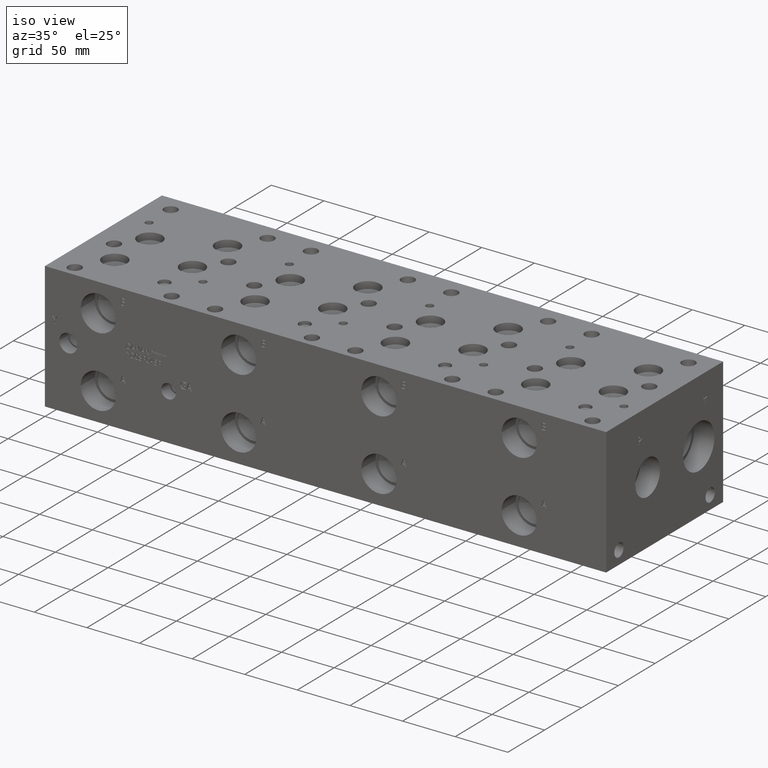
[diagram: clean part render]
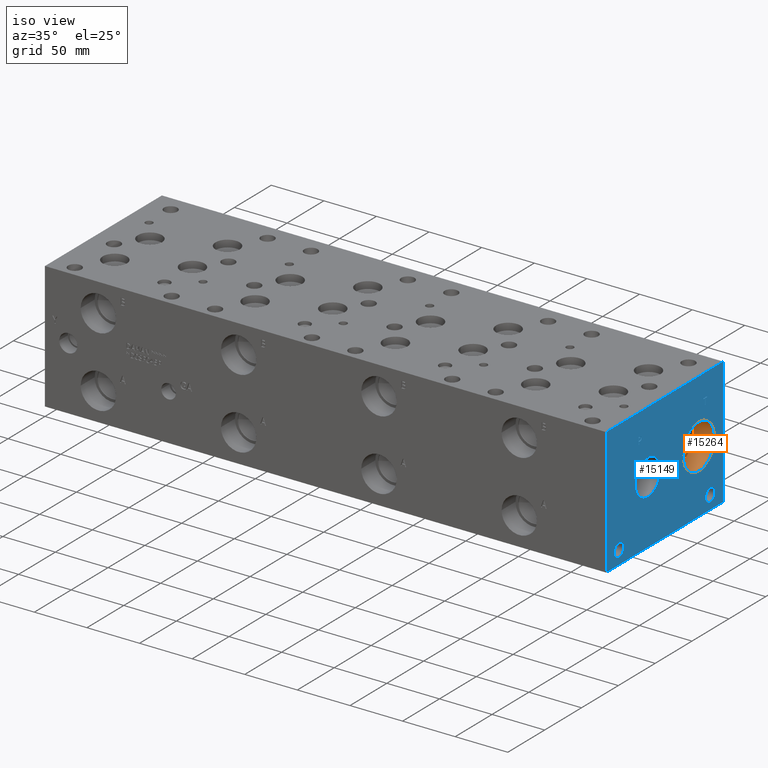
[diagram: same view with the hole feature highlighted: cylindrical wall and planar end face, labeled with their STEP entity ids]
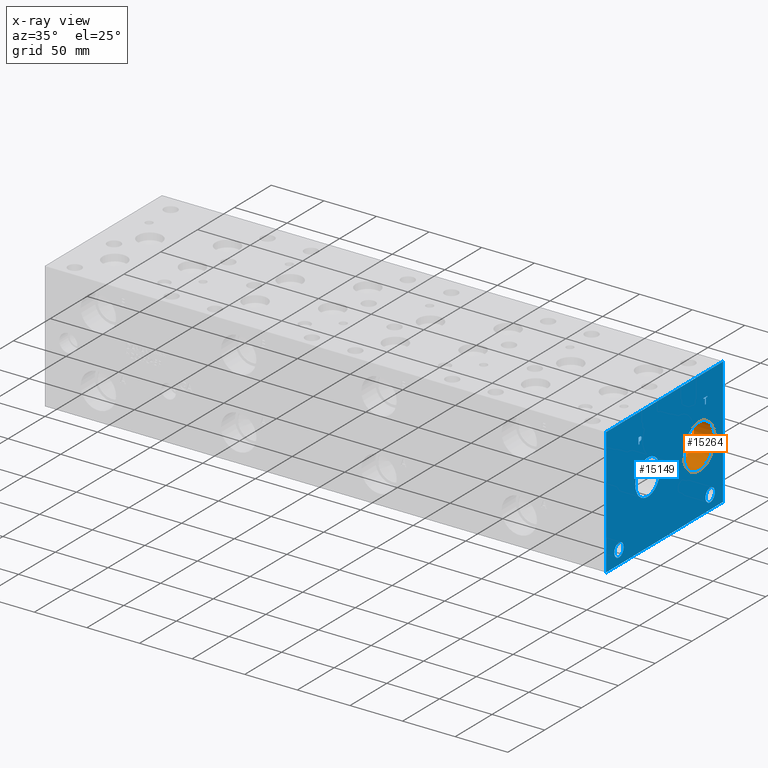
[diagram: x-ray of the same camera — body ghosted, the hole faces saturated]
A machine part, iso view. The highlighted faces form one hole feature of diameter 42.4688 mm: the cylindrical wall (entity #15264, orange) and its adjacent planar end face (entity #15149, blue) — they share a circular edge in the B-rep.
The next image is the same camera in x-ray (body ghosted, the hole faces saturated) — the bore reads through the body.
Wall:
#27=CYLINDRICAL_SURFACE('',#15983,21.2344);
#398=CIRCLE('',#15832,21.2344);
#399=CIRCLE('',#15833,21.2344);
#454=CIRCLE('',#15980,21.2344);
#455=CIRCLE('',#15981,21.2344);
#1905=FACE_OUTER_BOUND('',#2787,.T.);
#2787=EDGE_LOOP('',(#12617,#12618,#12619,#12620,#12621,#12622));
#4280=LINE('',#25561,#5643);
#5643=VECTOR('',#18720,21.2344);
#6719=VERTEX_POINT('',#24698);
#6720=VERTEX_POINT('',#24699);
#6910=VERTEX_POINT('',#25554);
#6911=VERTEX_POINT('',#25555);
#8649=EDGE_CURVE('',#6719,#6720,#398,.T.);
#8650=EDGE_CURVE('',#6720,#6719,#399,.T.);
#8932=EDGE_CURVE('',#6910,#6911,#454,.T.);
#8933=EDGE_CURVE('',#6911,#6910,#455,.T.);
#8935=EDGE_CURVE('',#6720,#6911,#4280,.T.);
#12617=ORIENTED_EDGE('',*,*,#8649,.F.);
#12618=ORIENTED_EDGE('',*,*,#8650,.F.);
#12619=ORIENTED_EDGE('',*,*,#8935,.T.);
#12620=ORIENTED_EDGE('',*,*,#8932,.F.);
#12621=ORIENTED_EDGE('',*,*,#8933,.F.);
#12622=ORIENTED_EDGE('',*,*,#8935,.F.);
#15264=ADVANCED_FACE('',(#1905),#27,.F.);
#15832=AXIS2_PLACEMENT_3D('',#24700,#18227,#18228);
#15833=AXIS2_PLACEMENT_3D('',#24701,#18229,#18230);
#15980=AXIS2_PLACEMENT_3D('',#25556,#18712,#18713);
#15981=AXIS2_PLACEMENT_3D('',#25557,#18714,#18715);
#15983=AXIS2_PLACEMENT_3D('',#25560,#18718,#18719);
#18227=DIRECTION('center_axis',(-1.,0.,0.));
#18228=DIRECTION('ref_axis',(0.,1.,0.));
#18229=DIRECTION('center_axis',(-1.,0.,0.));
#18230=DIRECTION('ref_axis',(0.,1.,0.));
#18712=DIRECTION('center_axis',(1.,0.,0.));
#18713=DIRECTION('ref_axis',(0.,1.,0.));
#18714=DIRECTION('center_axis',(1.,0.,0.));
#18715=DIRECTION('ref_axis',(0.,1.,0.));
#18718=DIRECTION('center_axis',(1.,0.,0.));
#18719=DIRECTION('ref_axis',(0.,1.,0.));
#18720=DIRECTION('',(-1.,0.,0.));
#24698=CARTESIAN_POINT('',(533.4,147.066,60.325));
#24699=CARTESIAN_POINT('',(533.4,104.5972,60.325));
#24700=CARTESIAN_POINT('Origin',(533.4,125.8316,60.325));
#24701=CARTESIAN_POINT('Origin',(533.4,125.8316,60.325));
#25554=CARTESIAN_POINT('',(513.8928,147.066,60.325));
#25555=CARTESIAN_POINT('',(513.8928,104.5972,60.325));
#25556=CARTESIAN_POINT('Origin',(513.8928,125.8316,60.325));
#25557=CARTESIAN_POINT('Origin',(513.8928,125.8316,60.325));
#25560=CARTESIAN_POINT('Origin',(523.6464,125.8316,60.325));
#25561=CARTESIAN_POINT('',(523.6464,104.5972,60.325));
End face:
#398=CIRCLE('',#15832,21.2344);
#399=CIRCLE('',#15833,21.2344);
#400=CIRCLE('',#15834,16.8529);
#401=CIRCLE('',#15835,16.8529);
#402=CIRCLE('',#15836,6.35);
#403=CIRCLE('',#15837,6.35);
#404=CIRCLE('',#15838,6.35);
#405=CIRCLE('',#15839,6.35);
#1098=B_SPLINE_CURVE_WITH_KNOTS('',2,(#24595,#24596,#24597,#24598),
 .UNSPECIFIED.,.F.,.F.,(3,1,3),(0.,1.,2.),.UNSPECIFIED.);
#1100=B_SPLINE_CURVE_WITH_KNOTS('',2,(#24616,#24617,#24618,#24619),
 .UNSPECIFIED.,.F.,.F.,(3,1,3),(0.,1.,2.),.UNSPECIFIED.);
#1102=B_SPLINE_CURVE_WITH_KNOTS('',2,(#24665,#24666,#24667,#24668),
 .UNSPECIFIED.,.F.,.F.,(3,1,3),(0.,1.,2.),.UNSPECIFIED.);
#1104=B_SPLINE_CURVE_WITH_KNOTS('',2,(#24683,#24684,#24685,#24686),
 .UNSPECIFIED.,.F.,.F.,(3,1,3),(0.,1.,2.),.UNSPECIFIED.);
#1205=FACE_BOUND('',#2652,.T.);
#1206=FACE_BOUND('',#2653,.T.);
#1207=FACE_BOUND('',#2654,.T.);
#1208=FACE_BOUND('',#2655,.T.);
#1209=FACE_BOUND('',#2656,.T.);
#1210=FACE_BOUND('',#2657,.T.);
#1790=FACE_OUTER_BOUND('',#2651,.T.);
#2651=EDGE_LOOP('',(#12037,#12038,#12039,#12040));
#2652=EDGE_LOOP('',(#12041,#12042));
#2653=EDGE_LOOP('',(#12043,#12044));
#2654=EDGE_LOOP('',(#12045,#12046));
#2655=EDGE_LOOP('',(#12047,#12048));
#2656=EDGE_LOOP('',(#12049,#12050,#12051,#12052,#12053,#12054,#12055,#12056));
#2657=EDGE_LOOP('',(#12057,#12058,#12059,#12060,#12061,#12062,#12063,#12064,
#12065));
#3120=LINE('',#20058,#4483);
#4072=LINE('',#24628,#5435);
#4075=LINE('',#24634,#5438);
#4078=LINE('',#24640,#5441);
#4081=LINE('',#24646,#5444);
#4084=LINE('',#24652,#5447);
#4088=LINE('',#24694,#5451);
#4089=LINE('',#24696,#5452);
#4090=LINE('',#24697,#5453);
#4091=LINE('',#24716,#5454);
#4092=LINE('',#24718,#5455);
#4093=LINE('',#24720,#5456);
#4094=LINE('',#24722,#5457);
#4095=LINE('',#24724,#5458);
#4096=LINE('',#24726,#5459);
#4097=LINE('',#24728,#5460);
#4098=LINE('',#24729,#5461);
#4483=VECTOR('',#16594,10.);
#5435=VECTOR('',#18196,10.);
#5438=VECTOR('',#18201,10.);
#5441=VECTOR('',#18206,10.);
#5444=VECTOR('',#18211,10.);
#5447=VECTOR('',#18216,10.);
#5451=VECTOR('',#18224,10.);
#5452=VECTOR('',#18225,10.);
#5453=VECTOR('',#18226,10.);
#5454=VECTOR('',#18243,10.);
#5455=VECTOR('',#18244,10.);
#5456=VECTOR('',#18245,10.);
#5457=VECTOR('',#18246,10.);
#5458=VECTOR('',#18247,10.);
#5459=VECTOR('',#18248,10.);
#5460=VECTOR('',#18249,10.);
#5461=VECTOR('',#18250,10.);
#5835=VERTEX_POINT('',#20055);
#5836=VERTEX_POINT('',#20057);
#6699=VERTEX_POINT('',#24593);
#6700=VERTEX_POINT('',#24594);
#6703=VERTEX_POINT('',#24615);
#6705=VERTEX_POINT('',#24627);
#6707=VERTEX_POINT('',#24633);
#6709=VERTEX_POINT('',#24639);
#6711=VERTEX_POINT('',#24645);
#6713=VERTEX_POINT('',#24651);
#6715=VERTEX_POINT('',#24664);
#6717=VERTEX_POINT('',#24693);
#6718=VERTEX_POINT('',#24695);
#6719=VERTEX_POINT('',#24698);
#6720=VERTEX_POINT('',#24699);
#6721=VERTEX_POINT('',#24702);
#6722=VERTEX_POINT('',#24703);
#6723=VERTEX_POINT('',#24706);
#6724=VERTEX_POINT('',#24707);
#6725=VERTEX_POINT('',#24710);
#6726=VERTEX_POINT('',#24711);
#6727=VERTEX_POINT('',#24714);
#6728=VERTEX_POINT('',#24715);
#6729=VERTEX_POINT('',#24717);
#6730=VERTEX_POINT('',#24719);
#6731=VERTEX_POINT('',#24721);
#6732=VERTEX_POINT('',#24723);
#6733=VERTEX_POINT('',#24725);
#6734=VERTEX_POINT('',#24727);
#7348=EDGE_CURVE('',#5835,#5836,#3120,.T.);
#8619=EDGE_CURVE('',#6699,#6700,#1098,.T.);
#8623=EDGE_CURVE('',#6703,#6699,#1100,.T.);
#8626=EDGE_CURVE('',#6705,#6703,#4072,.T.);
#8629=EDGE_CURVE('',#6707,#6705,#4075,.T.);
#8632=EDGE_CURVE('',#6709,#6707,#4078,.T.);
#8635=EDGE_CURVE('',#6711,#6709,#4081,.T.);
#8638=EDGE_CURVE('',#6713,#6711,#4084,.T.);
#8641=EDGE_CURVE('',#6715,#6713,#1102,.T.);
#8644=EDGE_CURVE('',#6700,#6715,#1104,.T.);
#8646=EDGE_CURVE('',#5835,#6717,#4088,.T.);
#8647=EDGE_CURVE('',#6717,#6718,#4089,.T.);
#8648=EDGE_CURVE('',#5836,#6718,#4090,.T.);
#8649=EDGE_CURVE('',#6719,#6720,#398,.T.);
#8650=EDGE_CURVE('',#6720,#6719,#399,.T.);
#8651=EDGE_CURVE('',#6721,#6722,#400,.T.);
#8652=EDGE_CURVE('',#6722,#6721,#401,.T.);
#8653=EDGE_CURVE('',#6723,#6724,#402,.T.);
#8654=EDGE_CURVE('',#6724,#6723,#403,.T.);
#8655=EDGE_CURVE('',#6725,#6726,#404,.T.);
#8656=EDGE_CURVE('',#6726,#6725,#405,.T.);
#8657=EDGE_CURVE('',#6727,#6728,#4091,.T.);
#8658=EDGE_CURVE('',#6728,#6729,#4092,.T.);
#8659=EDGE_CURVE('',#6729,#6730,#4093,.T.);
#8660=EDGE_CURVE('',#6730,#6731,#4094,.T.);
#8661=EDGE_CURVE('',#6731,#6732,#4095,.T.);
#8662=EDGE_CURVE('',#6732,#6733,#4096,.T.);
#8663=EDGE_CURVE('',#6733,#6734,#4097,.T.);
#8664=EDGE_CURVE('',#6734,#6727,#4098,.T.);
#12037=ORIENTED_EDGE('',*,*,#8646,.T.);
#12038=ORIENTED_EDGE('',*,*,#8647,.T.);
#12039=ORIENTED_EDGE('',*,*,#8648,.F.);
#12040=ORIENTED_EDGE('',*,*,#7348,.F.);
#12041=ORIENTED_EDGE('',*,*,#8649,.T.);
#12042=ORIENTED_EDGE('',*,*,#8650,.T.);
#12043=ORIENTED_EDGE('',*,*,#8651,.T.);
#12044=ORIENTED_EDGE('',*,*,#8652,.T.);
#12045=ORIENTED_EDGE('',*,*,#8653,.T.);
#12046=ORIENTED_EDGE('',*,*,#8654,.T.);
#12047=ORIENTED_EDGE('',*,*,#8655,.T.);
#12048=ORIENTED_EDGE('',*,*,#8656,.T.);
#12049=ORIENTED_EDGE('',*,*,#8657,.T.);
#12050=ORIENTED_EDGE('',*,*,#8658,.T.);
#12051=ORIENTED_EDGE('',*,*,#8659,.T.);
#12052=ORIENTED_EDGE('',*,*,#8660,.T.);
#12053=ORIENTED_EDGE('',*,*,#8661,.T.);
#12054=ORIENTED_EDGE('',*,*,#8662,.T.);
#12055=ORIENTED_EDGE('',*,*,#8663,.T.);
#12056=ORIENTED_EDGE('',*,*,#8664,.T.);
#12057=ORIENTED_EDGE('',*,*,#8619,.T.);
#12058=ORIENTED_EDGE('',*,*,#8644,.T.);
#12059=ORIENTED_EDGE('',*,*,#8641,.T.);
#12060=ORIENTED_EDGE('',*,*,#8638,.T.);
#12061=ORIENTED_EDGE('',*,*,#8635,.T.);
#12062=ORIENTED_EDGE('',*,*,#8632,.T.);
#12063=ORIENTED_EDGE('',*,*,#8629,.T.);
#12064=ORIENTED_EDGE('',*,*,#8626,.T.);
#12065=ORIENTED_EDGE('',*,*,#8623,.T.);
#14024=PLANE('',#15831);
#15149=ADVANCED_FACE('',(#1790,#1205,#1206,#1207,#1208,#1209,#1210),#14024,
 .T.);
#15831=AXIS2_PLACEMENT_3D('',#24692,#18222,#18223);
#15832=AXIS2_PLACEMENT_3D('',#24700,#18227,#18228);
#15833=AXIS2_PLACEMENT_3D('',#24701,#18229,#18230);
#15834=AXIS2_PLACEMENT_3D('',#24704,#18231,#18232);
#15835=AXIS2_PLACEMENT_3D('',#24705,#18233,#18234);
#15836=AXIS2_PLACEMENT_3D('',#24708,#18235,#18236);
#15837=AXIS2_PLACEMENT_3D('',#24709,#18237,#18238);
#15838=AXIS2_PLACEMENT_3D('',#24712,#18239,#18240);
#15839=AXIS2_PLACEMENT_3D('',#24713,#18241,#18242);
#16594=DIRECTION('',(0.,0.,1.));
#18196=DIRECTION('',(0.,1.,0.));
#18201=DIRECTION('',(0.,0.,1.));
#18206=DIRECTION('',(0.,-1.,0.));
#18211=DIRECTION('',(0.,0.,-1.));
#18216=DIRECTION('',(0.,-1.,0.));
#18222=DIRECTION('center_axis',(1.,0.,0.));
#18223=DIRECTION('ref_axis',(0.,1.,0.));
#18224=DIRECTION('',(0.,1.,0.));
#18225=DIRECTION('',(0.,0.,1.));
#18226=DIRECTION('',(0.,1.,0.));
#18227=DIRECTION('center_axis',(-1.,0.,0.));
#18228=DIRECTION('ref_axis',(0.,1.,0.));
#18229=DIRECTION('center_axis',(-1.,0.,0.));
#18230=DIRECTION('ref_axis',(0.,1.,0.));
#18231=DIRECTION('center_axis',(-1.,0.,0.));
#18232=DIRECTION('ref_axis',(0.,1.,0.));
#18233=DIRECTION('center_axis',(-1.,0.,0.));
#18234=DIRECTION('ref_axis',(0.,1.,0.));
#18235=DIRECTION('center_axis',(-1.,0.,0.));
#18236=DIRECTION('ref_axis',(0.,1.,0.));
#18237=DIRECTION('center_axis',(-1.,0.,0.));
#18238=DIRECTION('ref_axis',(0.,1.,0.));
#18239=DIRECTION('center_axis',(-1.,0.,0.));
#18240=DIRECTION('ref_axis',(0.,1.,0.));
#18241=DIRECTION('center_axis',(-1.,0.,0.));
#18242=DIRECTION('ref_axis',(0.,1.,0.));
#18243=DIRECTION('',(0.,-1.,0.));
#18244=DIRECTION('',(0.,0.,1.));
#18245=DIRECTION('',(0.,-1.,0.));
#18246=DIRECTION('',(0.,0.,1.));
#18247=DIRECTION('',(0.,1.,0.));
#18248=DIRECTION('',(0.,0.,-1.));
#18249=DIRECTION('',(0.,-1.,0.));
#18250=DIRECTION('',(0.,0.,-1.));
#20055=CARTESIAN_POINT('',(533.4,0.,0.));
#20057=CARTESIAN_POINT('',(533.4,0.,120.65));
#20058=CARTESIAN_POINT('',(533.4,0.,0.));
#24593=CARTESIAN_POINT('',(533.4,47.4361672023594,98.7907681439707));
#24594=CARTESIAN_POINT('',(533.4,48.192609654532,97.272737372604));
#24595=CARTESIAN_POINT('Ctrl Pts',(533.4,47.4361672023594,98.7907681439707));
#24596=CARTESIAN_POINT('Ctrl Pts',(533.4,47.7912320268486,98.5489123939564));
#24597=CARTESIAN_POINT('Ctrl Pts',(533.4,48.192609654532,97.802761675827));
#24598=CARTESIAN_POINT('Ctrl Pts',(533.4,48.192609654532,97.272737372604));
#24615=CARTESIAN_POINT('',(533.4,45.7740521543883,99.1869999046326));
#24616=CARTESIAN_POINT('Ctrl Pts',(533.4,45.7740521543883,99.1869999046326));
#24617=CARTESIAN_POINT('Ctrl Pts',(533.4,46.3400975267624,99.1869999046326));
#24618=CARTESIAN_POINT('Ctrl Pts',(533.4,47.132561048086,99.0017486918556));
#24619=CARTESIAN_POINT('Ctrl Pts',(533.4,47.4361672023594,98.7907681439707));
#24627=CARTESIAN_POINT('',(533.4,44.1788333776978,99.1869999046326));
#24628=CARTESIAN_POINT('',(533.4,22.0894166888489,99.1869999046326));
#24633=CARTESIAN_POINT('',(533.4,44.1788333776978,92.837));
#24634=CARTESIAN_POINT('',(533.4,44.1788333776978,46.4185));
#24639=CARTESIAN_POINT('',(533.4,45.0227555692373,92.837));
#24640=CARTESIAN_POINT('',(533.4,22.5113777846186,92.837));
#24645=CARTESIAN_POINT('',(533.4,45.0227555692373,95.2040988299279));
#24646=CARTESIAN_POINT('',(533.4,45.0227555692373,47.6020494149639));
#24651=CARTESIAN_POINT('',(533.4,45.7380310852372,95.2040988299279));
#24652=CARTESIAN_POINT('',(533.4,22.8690155426186,95.2040988299279));
#24664=CARTESIAN_POINT('',(533.4,47.6368560162011,95.8627698086904));
#24665=CARTESIAN_POINT('Ctrl Pts',(533.4,47.6368560162011,95.8627698086904));
#24666=CARTESIAN_POINT('Ctrl Pts',(533.4,47.3075205268198,95.5385801863307));
#24667=CARTESIAN_POINT('Ctrl Pts',(533.4,46.4172855320861,95.2040988299279));
#24668=CARTESIAN_POINT('Ctrl Pts',(533.4,45.7380310852372,95.2040988299279));
#24683=CARTESIAN_POINT('Ctrl Pts',(533.4,48.192609654532,97.272737372604));
#24684=CARTESIAN_POINT('Ctrl Pts',(533.4,48.192609654532,96.8610680108774));
#24685=CARTESIAN_POINT('Ctrl Pts',(533.4,47.8992952343018,96.1200631597695));
#24686=CARTESIAN_POINT('Ctrl Pts',(533.4,47.6368560162011,95.8627698086904));
#24692=CARTESIAN_POINT('Origin',(533.4,0.,0.));
#24693=CARTESIAN_POINT('',(533.4,158.75,0.));
#24694=CARTESIAN_POINT('',(533.4,0.,0.));
#24695=CARTESIAN_POINT('',(533.4,158.75,120.65));
#24696=CARTESIAN_POINT('',(533.4,158.75,0.));
#24697=CARTESIAN_POINT('',(533.4,0.,120.65));
#24698=CARTESIAN_POINT('',(533.4,147.066,60.325));
#24699=CARTESIAN_POINT('',(533.4,104.5972,60.325));
#24700=CARTESIAN_POINT('Origin',(533.4,125.8316,60.325));
#24701=CARTESIAN_POINT('Origin',(533.4,125.8316,60.325));
#24702=CARTESIAN_POINT('',(533.4,73.3425,60.325));
#24703=CARTESIAN_POINT('',(533.4,39.6367,60.325));
#24704=CARTESIAN_POINT('Origin',(533.4,56.4896,60.325));
#24705=CARTESIAN_POINT('Origin',(533.4,56.4896,60.325));
#24706=CARTESIAN_POINT('',(533.4,147.6248,12.7));
#24707=CARTESIAN_POINT('',(533.4,134.9248,12.7));
#24708=CARTESIAN_POINT('Origin',(533.4,141.2748,12.7));
#24709=CARTESIAN_POINT('Origin',(533.4,141.2748,12.7));
#24710=CARTESIAN_POINT('',(533.4,23.7998,12.7));
#24711=CARTESIAN_POINT('',(533.4,11.0998,12.7));
#24712=CARTESIAN_POINT('Origin',(533.4,17.4498,12.7));
#24713=CARTESIAN_POINT('Origin',(533.4,17.4498,12.7));
#24714=CARTESIAN_POINT('',(533.4,135.150765271453,92.837));
#24715=CARTESIAN_POINT('',(533.4,134.306843079914,92.837));
#24716=CARTESIAN_POINT('',(533.4,67.5753826357265,92.837));
#24717=CARTESIAN_POINT('',(533.4,134.306843079914,98.4357033194816));
#24718=CARTESIAN_POINT('',(533.4,134.306843079914,46.4185));
#24719=CARTESIAN_POINT('',(533.4,132.176454132978,98.4357033194816));
#24720=CARTESIAN_POINT('',(533.4,67.1534215399568,98.4357033194816));
#24721=CARTESIAN_POINT('',(533.4,132.176454132978,99.1869999046326));
#24722=CARTESIAN_POINT('',(533.4,132.176454132978,49.2178516597408));
#24723=CARTESIAN_POINT('',(533.4,137.281154218388,99.1869999046326));
#24724=CARTESIAN_POINT('',(533.4,66.0882270664892,99.1869999046326));
#24725=CARTESIAN_POINT('',(533.4,137.281154218388,98.4357033194816));
#24726=CARTESIAN_POINT('',(533.4,137.281154218388,49.5934999523163));
#24727=CARTESIAN_POINT('',(533.4,135.150765271453,98.4357033194816));
#24728=CARTESIAN_POINT('',(533.4,68.640577109194,98.4357033194816));
#24729=CARTESIAN_POINT('',(533.4,135.150765271453,49.2178516597408));